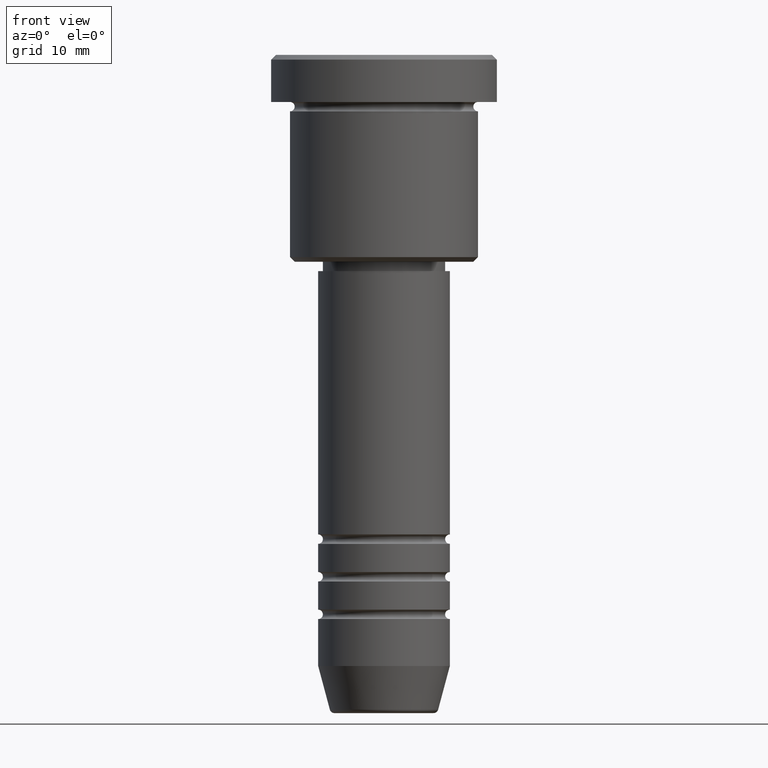
[diagram: clean part render]
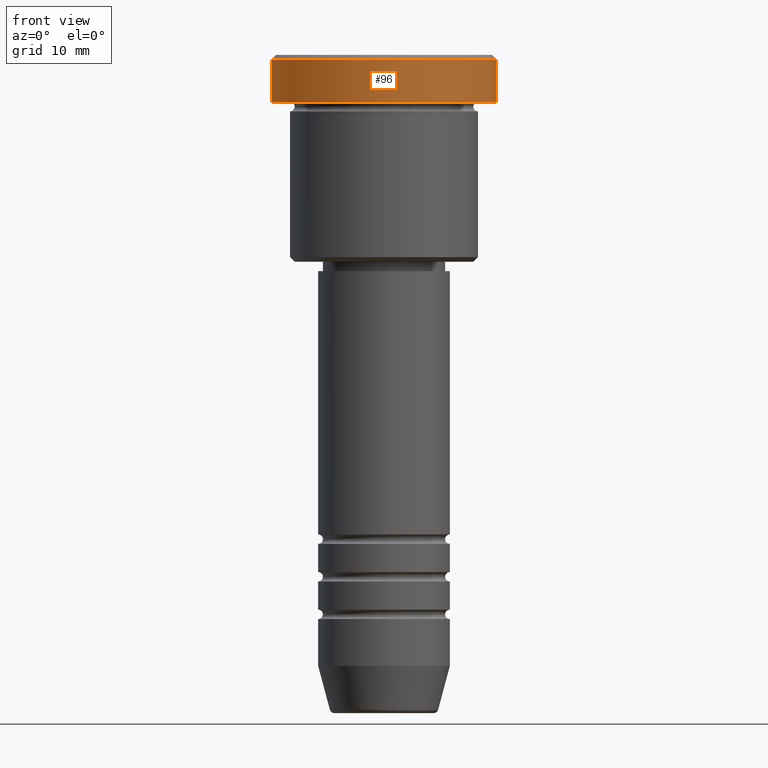
[diagram: same view with one face highlighted and labeled with its STEP entity id]
A machine part, front view. The second image highlights one B-rep face of the part: STEP entity #96.
In plain terms, the highlighted cylindrical surface (partial cylindrical patch) has radius 12 mm, axis along (-0, -0, 1).
Its self-contained STEP definition (entity closure, byte-faithful):
#11 = VECTOR ( 'NONE', #258, 1000.000000000000000 ) ;
#31 = EDGE_CURVE ( 'NONE', #58, #1075, #269, .T. ) ;
#32 = ORIENTED_EDGE ( 'NONE', *, *, #279, .T. ) ;
#45 = CARTESIAN_POINT ( 'NONE',  ( 0.000000000000000000, 0.000000000000000000, -5.000000000000000000 ) ) ;
#58 = VERTEX_POINT ( 'NONE', #1148 ) ;
#70 = AXIS2_PLACEMENT_3D ( 'NONE', #45, #141, #596 ) ;
#84 = AXIS2_PLACEMENT_3D ( 'NONE', #975, #779, #338 ) ;
#96 = ADVANCED_FACE ( 'NONE', ( #351 ), #872, .T. ) ;
#128 = ORIENTED_EDGE ( 'NONE', *, *, #31, .F. ) ;
#141 = DIRECTION ( 'NONE',  ( -0.000000000000000000, -0.000000000000000000, 1.000000000000000000 ) ) ;
#147 = CARTESIAN_POINT ( 'NONE',  ( -12.00000000000000000, 1.469576158976823947E-15, 0.000000000000000000 ) ) ;
#258 = DIRECTION ( 'NONE',  ( -0.000000000000000000, -0.000000000000000000, 1.000000000000000000 ) ) ;
#269 = LINE ( 'NONE', #147, #638 ) ;
#279 = EDGE_CURVE ( 'NONE', #380, #1075, #816, .T. ) ;
#330 = ORIENTED_EDGE ( 'NONE', *, *, #593, .T. ) ;
#334 = DIRECTION ( 'NONE',  ( -0.000000000000000000, -0.000000000000000000, 1.000000000000000000 ) ) ;
#338 = DIRECTION ( 'NONE',  ( 1.000000000000000000, 0.000000000000000000, 0.000000000000000000 ) ) ;
#351 = FACE_OUTER_BOUND ( 'NONE', #1036, .T. ) ;
#380 = VERTEX_POINT ( 'NONE', #881 ) ;
#409 = EDGE_CURVE ( 'NONE', #58, #936, #487, .T. ) ;
#411 = CARTESIAN_POINT ( 'NONE',  ( 12.00000000000000000, 0.000000000000000000, -5.000000000000000000 ) ) ;
#487 = CIRCLE ( 'NONE', #70, 12.00000000000000000 ) ;
#548 = CARTESIAN_POINT ( 'NONE',  ( -12.00000000000000000, 1.469576158976823947E-15, -0.4999999999999917843 ) ) ;
#549 = CARTESIAN_POINT ( 'NONE',  ( 12.00000000000000000, 0.000000000000000000, 0.000000000000000000 ) ) ;
#593 = EDGE_CURVE ( 'NONE', #936, #380, #1066, .T. ) ;
#596 = DIRECTION ( 'NONE',  ( 1.000000000000000000, 0.000000000000000000, 0.000000000000000000 ) ) ;
#638 = VECTOR ( 'NONE', #334, 1000.000000000000000 ) ;
#710 = DIRECTION ( 'NONE',  ( 1.000000000000000000, 0.000000000000000000, 0.000000000000000000 ) ) ;
#779 = DIRECTION ( 'NONE',  ( -0.000000000000000000, -0.000000000000000000, 1.000000000000000000 ) ) ;
#794 = CARTESIAN_POINT ( 'NONE',  ( 0.000000000000000000, 0.000000000000000000, -0.4999999999999917843 ) ) ;
#816 = CIRCLE ( 'NONE', #1124, 12.00000000000000000 ) ;
#872 = CYLINDRICAL_SURFACE ( 'NONE', #84, 12.00000000000000000 ) ;
#881 = CARTESIAN_POINT ( 'NONE',  ( 12.00000000000000000, 0.000000000000000000, -0.4999999999999917843 ) ) ;
#931 = ORIENTED_EDGE ( 'NONE', *, *, #409, .T. ) ;
#936 = VERTEX_POINT ( 'NONE', #411 ) ;
#975 = CARTESIAN_POINT ( 'NONE',  ( 0.000000000000000000, 0.000000000000000000, 0.000000000000000000 ) ) ;
#1036 = EDGE_LOOP ( 'NONE', ( #128, #931, #330, #32 ) ) ;
#1066 = LINE ( 'NONE', #549, #11 ) ;
#1075 = VERTEX_POINT ( 'NONE', #548 ) ;
#1124 = AXIS2_PLACEMENT_3D ( 'NONE', #794, #1152, #710 ) ;
#1148 = CARTESIAN_POINT ( 'NONE',  ( -12.00000000000000000, 1.469576158976823947E-15, -5.000000000000000000 ) ) ;
#1152 = DIRECTION ( 'NONE',  ( 0.000000000000000000, 0.000000000000000000, -1.000000000000000000 ) ) ;